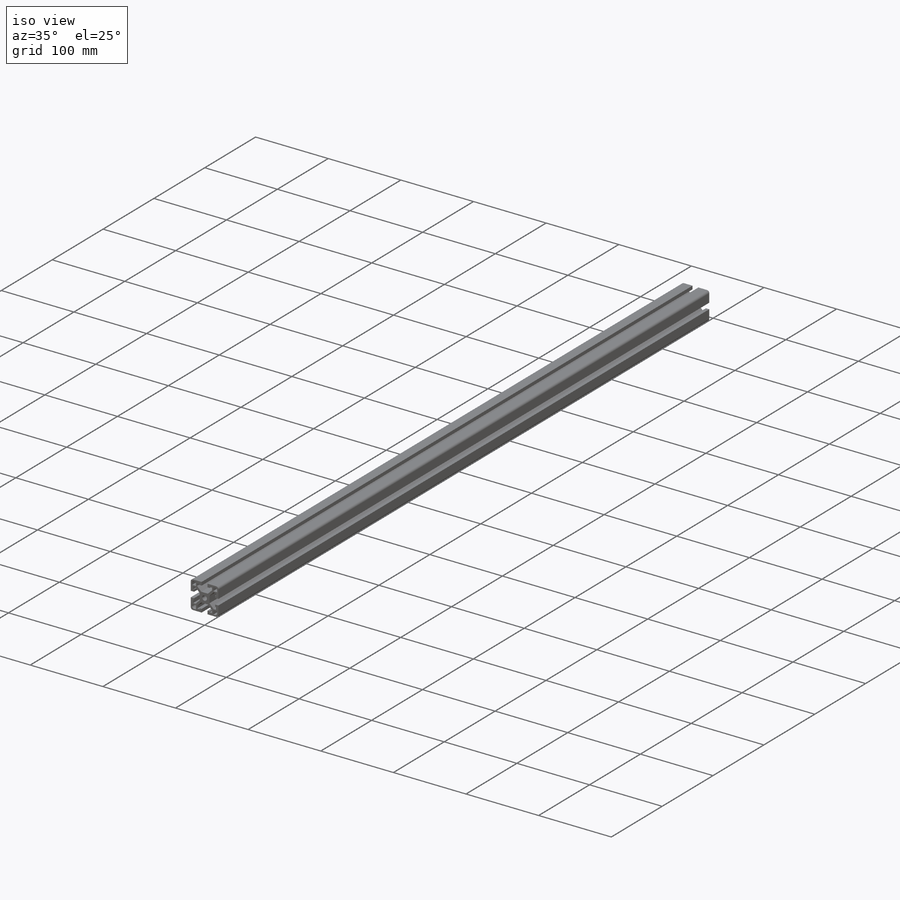
[diagram: iso view]
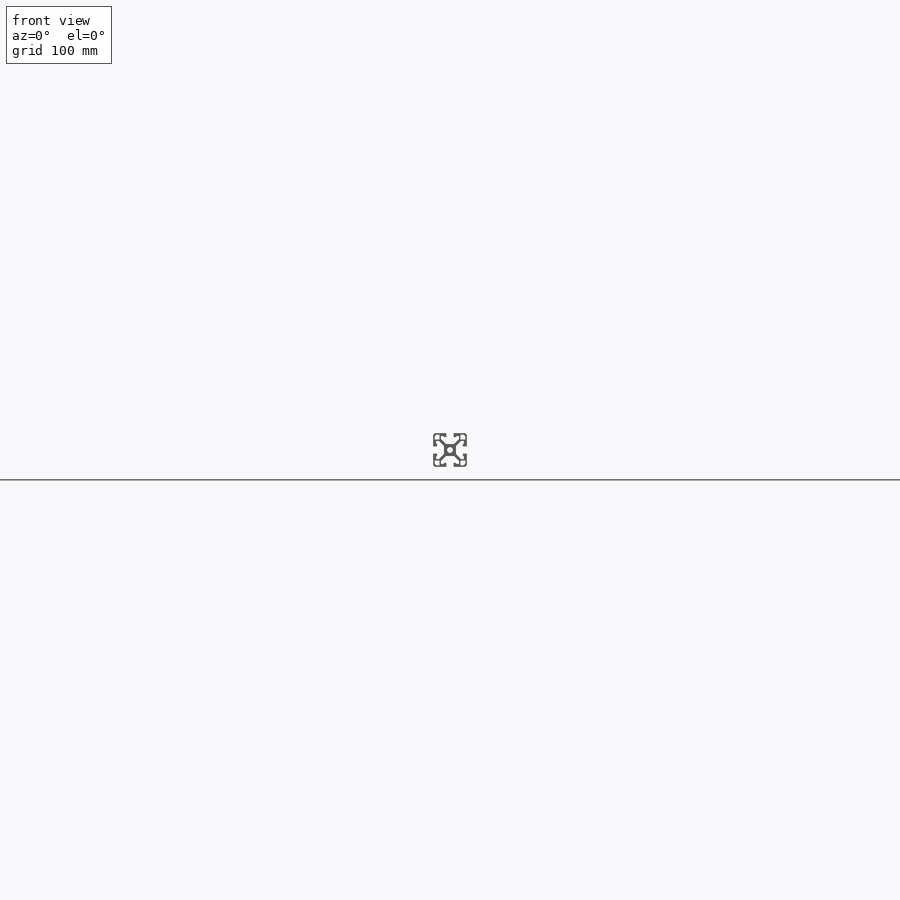
[diagram: front view]
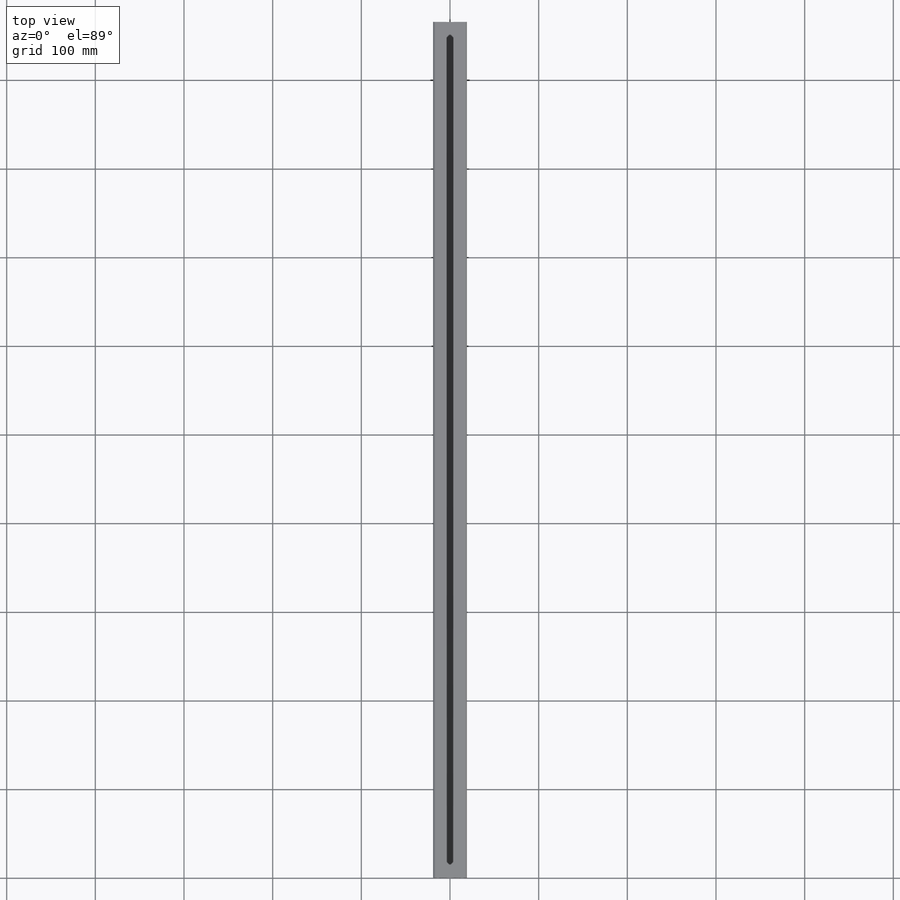
[diagram: top view]
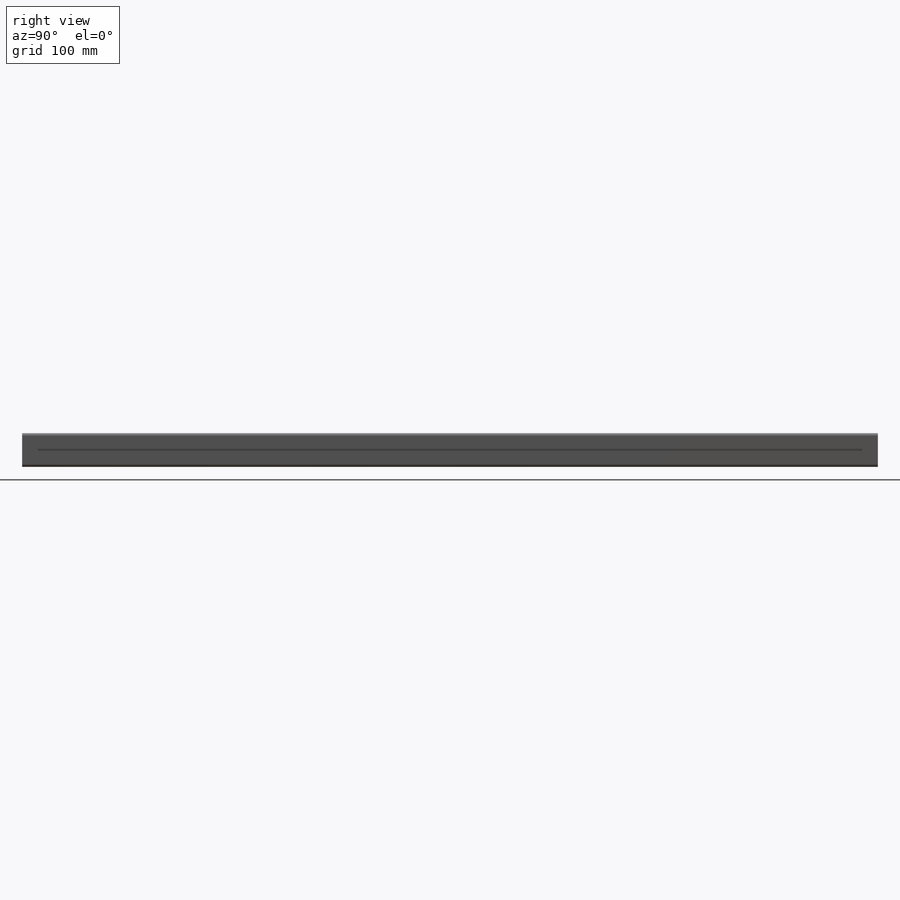
[diagram: right view]
SOLIDWORKS PART (.sldprt)
format: sldprt  version: not decoded by parser v0  size: 3,265,024 bytes
history: native  units: mm
features: sketch x48, cut_extrude x47, material x1 (+38 scaffold rows collapsed; 12 parser-record rows omitted)
feature tree (146):
  scaffold x38  (default folders/planes/origin — collapsed)
  material  "Material <not specified>"
  parser-record x12  (decoder bookkeeping rows leaked as tree rows — omitted from the tree; the rows remain in map.json)
  sketch  "Sketch1"  dims[c1.D2=3.048mm c1.D5=1.016mm c1.D6=1.016mm c1.D13=~1.042776mm c1.D15=6.5278mm c1.D3=5.08mm c2.D2=3.175mm c2.D4=6.5278mm c2.D14=2.794mm c2.D1=~17.549308mm c3.D1=45.0deg c3.D3=4.826mm c3.D4=4.826mm c3.D7=7.62mm c3.D8=7.62mm c3.D9=19.05mm c3.D10=12.7mm c3.D11=~7.529984mm c4.D11=2.0deg c4.D12=~36.763158mm c5.D12=3.0deg c6.D12=~36.763158mm c7.D12=2.0deg c7.D14=3.302mm c7.D10=19.05mm c7.D3=4.826mm c7.D5=4.064mm c7.D6=3.2385mm c7.D7=3.2385mm c7.D8=7.7724mm c7.D11=7.7724mm c8.D3=11.938mm c8.D4=11.938mm c8.D6=14.986mm c8.D7=9.4742mm c8.D1=45.0deg c9.D3=19.05mm c9.D5=19.05mm c9.D6=3.048mm c9.D7=8.9408mm c9.D8=8.9408mm c9.D9=12.319mm c9.D10=12.319mm c9.D11=14.986mm c9.D12=14.986mm c9.D13=10.287mm c9.D15=5.3848mm c9.D16=7.1628mm c9.D17=7.1628mm c9.D18=7.747mm c9.D19=6.858mm c9.D20=7.747mm c9.D21=6.858mm c9.D22=19.05mm c9.D23=4.572mm]
  cut_extrude  "FinalCut"  Depth=609.6mm CutLength=609.6mm
  sketch  "Sketch38"
  sketch  "Sketch3"  dims[D1=20.6248mm D2=21.717mm]
  cut_extrude  "AFA1"  Depth=16.51mm
  sketch  "Sketch5"  dims[D1=20.6248mm D2=21.717mm]
  cut_extrude  "AFA2"  Depth=16.51mm
  sketch  "Sketch6"  dims[c1.D1=20.6248mm c1.D2=20.6248mm c2.D1=21.717mm]
  cut_extrude  "AFA3"  Depth=16.51mm
  sketch  "Sketch8"  dims[D2=20.6248mm D1=21.717mm]
  cut_extrude  "AFA4"  Depth=16.51mm
  sketch  "Sketch9"  dims[D2=20.6248mm D1=21.717mm]
  cut_extrude  "AFB1"  Depth=16.51mm
  sketch  "Sketch12"  dims[D2=20.6248mm D1=21.717mm]
  cut_extrude  "AFB2"  Depth=16.51mm
  sketch  "Sketch13"  dims[D3=20.6248mm D1=0.0mm D2=21.717mm]
  cut_extrude  "AFB3"  Depth=16.51mm
  sketch  "Sketch14"  dims[D2=20.6248mm D1=21.717mm]
  cut_extrude  "AFB4"  Depth=16.51mm
  sketch  "Sketch25"  dims[D1=20.6248mm D2=18.3134mm]
  cut_extrude  "BFA1"  Depth=16.51mm
  sketch  "Sketch27"  dims[D1=20.6248mm D2=18.3134mm]
  cut_extrude  "BFA2"  Depth=16.51mm
  sketch  "Sketch24"  dims[c1.D1=20.6248mm c1.D2=20.6248mm c2.D1=18.3134mm]
  cut_extrude  "BFA3"  Depth=16.51mm
  sketch  "Sketch23"  dims[c1.D1=20.6248mm c1.D2=20.6248mm c2.D1=18.3134mm]
  cut_extrude  "BFA4"  Depth=16.51mm
  sketch  "Sketch15"  dims[D2=20.6248mm D1=18.3134mm]
  cut_extrude  "BFB1"  Depth=16.51mm
  sketch  "Sketch17"  dims[D2=20.6248mm D1=18.3134mm]
  cut_extrude  "BFB2"  Depth=16.51mm
  sketch  "Sketch18"  dims[D2=20.6248mm D1=18.3134mm]
  cut_extrude  "BFB3"  Depth=16.51mm
  sketch  "Sketch19"  dims[D2=20.6248mm D1=18.3134mm]
  cut_extrude  "BFB4"  Depth=16.51mm
  sketch  "Sketch28"  dims[D1=7.62mm]
  cut_extrude  "TPA660015"  Depth=25.4mm
  sketch  "Sketch29"  dims[D1=7.62mm]
  cut_extrude  "TPB660015"  Depth=25.4mm
  sketch  "Sketch30"  dims[D1=7.874mm]
  cut_extrude  "TPA660034"  Depth=24.13mm
  sketch  "Sketch31"  dims[D1=7.874mm]
  cut_extrude  "TPB660034"  Depth=24.13mm
  sketch  "Sketch32"  dims[D1=8.128mm]
  cut_extrude  "TPA660033"  Depth=22.86mm
  sketch  "Sketch33"  dims[D1=8.128mm]
  cut_extrude  "TPB660033"  Depth=22.86mm
  sketch  "Sketch34"  dims[D1=9.525mm]
  cut_extrude  "TPA660009"  Depth=21.59mm
  sketch  "Sketch35"  dims[D1=9.525mm]
  cut_extrude  "TPB660009"  Depth=21.59mm
  sketch  "Sketch36"  dims[D1=11.1252mm]
  cut_extrude  "TPA660030"  Depth=20.32mm
  sketch  "Sketch37"  dims[D1=11.1252mm]
  cut_extrude  "TPB660030"  Depth=20.32mm
  sketch  "Sketch39"  dims[c1.D1=~44.828128mm c2.D1=45.0deg]
  cut_extrude  "MITA1"  [1 undecoded]
  sketch  "Sketch43"  dims[D2=19.05mm D1=28.575mm]
  cut_extrude  "MITCBA1"  [1 undecoded]
  sketch  "Sketch44"  dims[D1=8.3312mm D2=28.575mm]
  cut_extrude  "MITDRA1"  [1 undecoded]
  sketch  "Sketch45"  dims[c1.D1=~6.16906mm c1.D2=9.525mm c2.D1=17.4752mm]
  cut_extrude  "MITEBA1"  [1 undecoded]
  sketch  "Sketch46"  dims[D1=4.1656mm D2=17.4752mm]
  cut_extrude  "MITEDA1"  [1 undecoded]
  sketch  "Sketch40"  dims[c1.D1=~45.408282mm c2.D1=45.0deg]
  cut_extrude  "MITB1"  [1 undecoded]
  sketch  "Sketch47"  dims[c1.D1=~15.883714mm c1.D2=19.05mm c2.D1=28.575mm]
  cut_extrude  "MITCBB1"  [1 undecoded]
  sketch  "Sketch48"  dims[c1.D1=~8.496948mm c1.D2=8.3312mm c2.D1=28.575mm]
  cut_extrude  "MITDRB1"  [1 undecoded]
  sketch  "Sketch49"  dims[D2=9.525mm D1=17.4752mm]
  cut_extrude  "MITEBB1"  [1 undecoded]
  sketch  "Sketch50"  dims[D2=4.1656mm D1=17.4752mm]
  cut_extrude  "MITEDB1"  [1 undecoded]
  sketch  "Sketch41"  dims[c1.D1=~44.519605mm c2.D1=45.0deg]
  cut_extrude  "MITA3"  [1 undecoded]
  sketch  "Sketch51"  dims[D1=19.05mm D2=28.575mm]
  cut_extrude  "MITCBA3"  [1 undecoded]
  sketch  "Sketch52"  dims[c1.D1=~10.456475mm c1.D2=8.3312mm c2.D1=28.575mm]
  cut_extrude  "MITDRA3"  [1 undecoded]
  sketch  "Sketch53"  dims[D1=9.525mm D2=17.4752mm]
  cut_extrude  "MITEBA3"  [1 undecoded]
  sketch  "Sketch54"  dims[D1=4.1656mm D2=17.4752mm]
  cut_extrude  "MITEDA3"  [1 undecoded]
  sketch  "Sketch42"  dims[c1.D1=~45.044821mm c2.D1=45.0deg]
  cut_extrude  "MITB3"  [1 undecoded]
  sketch  "Sketch55"  dims[D1=19.05mm D2=28.575mm]
  cut_extrude  "MITCBB3"  [1 undecoded]
  sketch  "Sketch56"  dims[c1.D1=~11.643541mm c1.D2=8.3312mm c2.D1=28.575mm]
  cut_extrude  "MITDRB3"  [1 undecoded]
  sketch  "Sketch57"  dims[c1.D1=~5.356854mm c1.D2=9.525mm c2.D1=17.4752mm]
  cut_extrude  "MITEBB3"  [1 undecoded]
  sketch  "Sketch58"  dims[c1.D1=~5.947864mm c1.D2=4.1656mm c2.D1=17.4752mm]
  cut_extrude  "MITEDB3"  [1 undecoded]
decode coverage: 74 of 95 modeling features carry decoded parameters
note: ~ marks probable driven/reference dimensions
note: 20 parameter values undecoded
summary: no parameter record found for 20 features
note: suppression state not decoded; provenance and decode notes live in map.json
